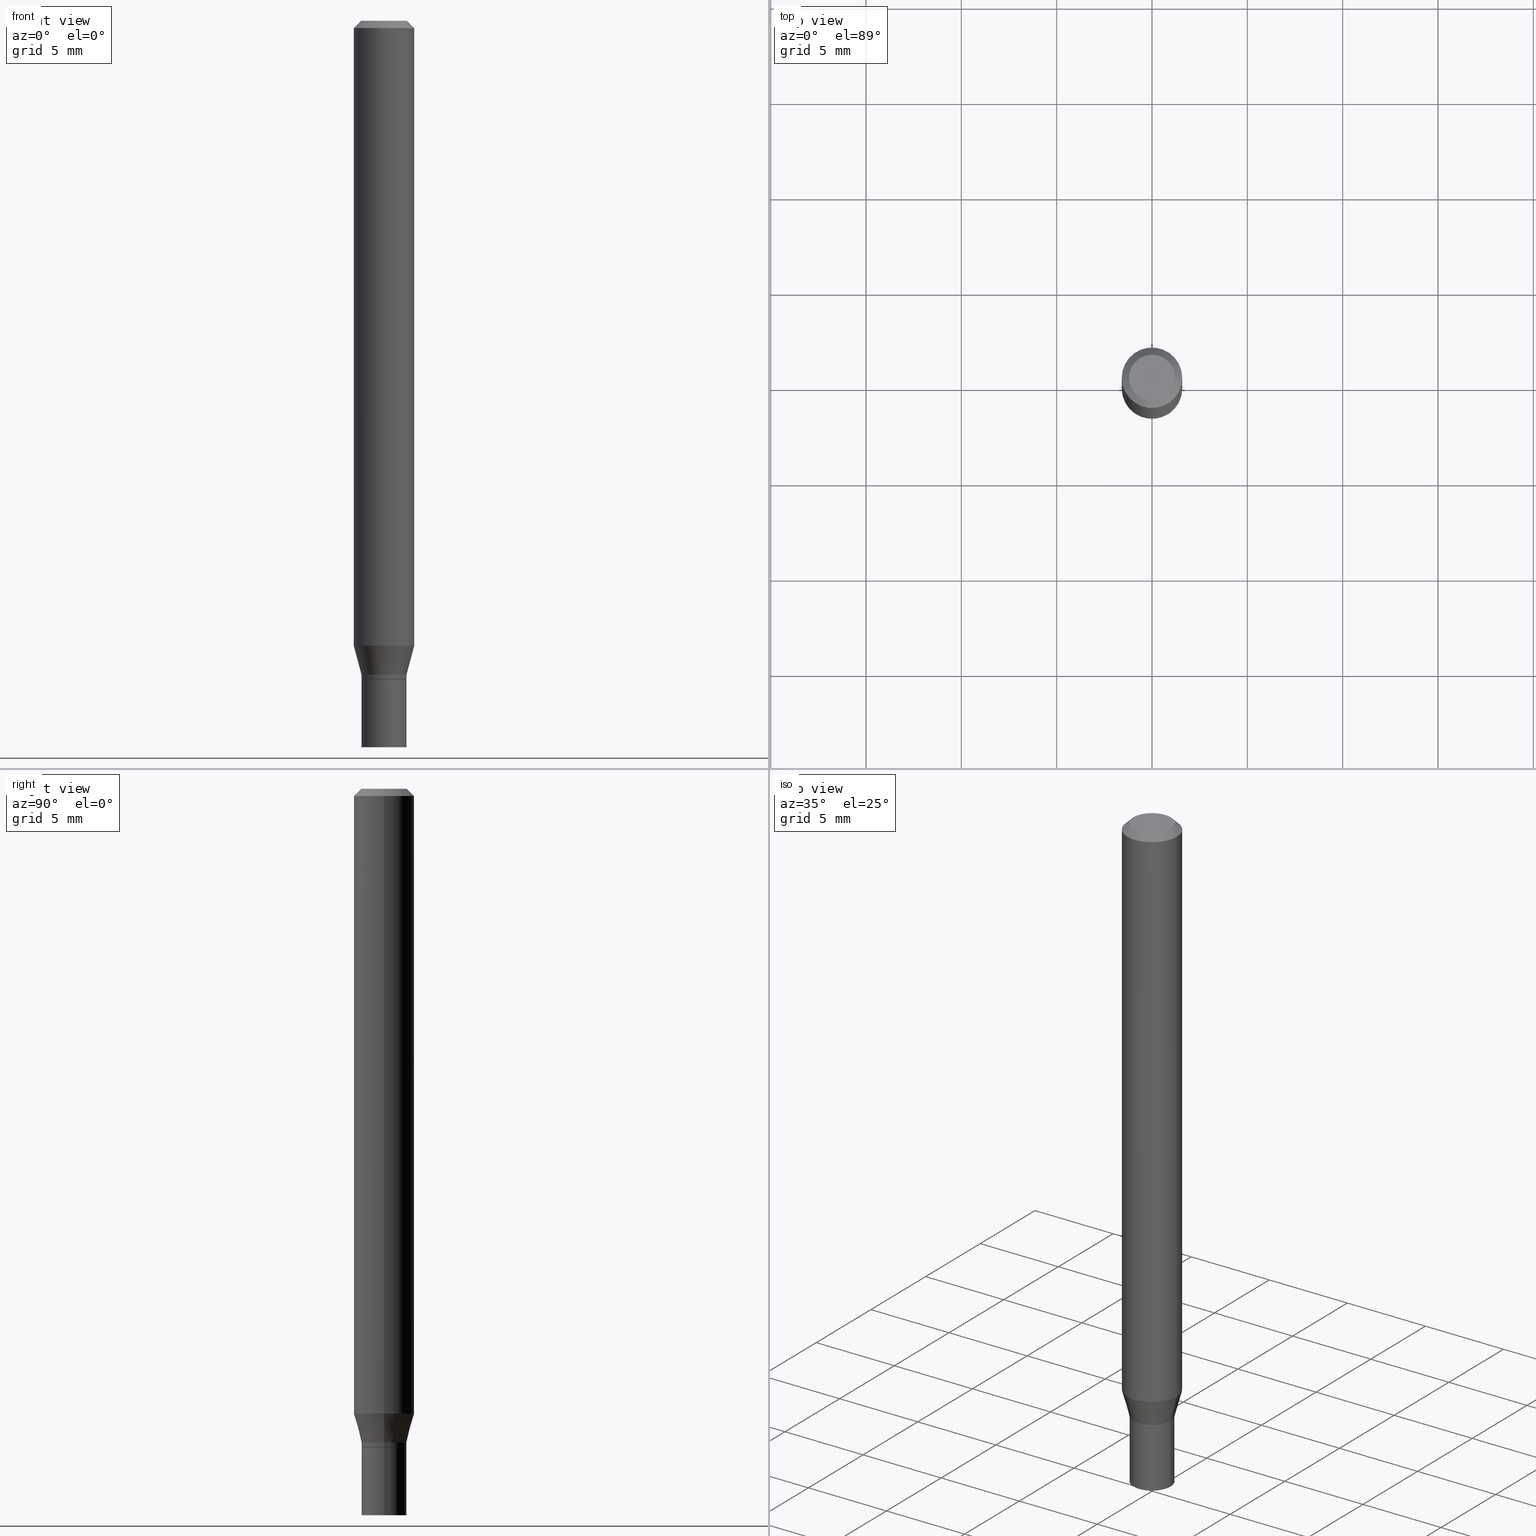
[diagram: canonical four-view strip — front | top / right | iso, engineering-drawing reading convention]
A machine part, canonical four-view strip (front | top / right | iso — engineering-drawing reading convention). The complete STEP part file that produces these views, byte-faithful:
ISO-10303-21;
HEADER;
FILE_DESCRIPTION (( 'STEP AP203' ),
    '1' );
FILE_NAME ('02429.STEP',
    '2024-03-18T20:33:06',
    ( '' ),
    ( '' ),
    'SwSTEP 2.0',
    'SolidWorks 2023',
    '' );
FILE_SCHEMA (( 'CONFIG_CONTROL_DESIGN' ));
ENDSEC;

DATA;
#1 = DIRECTION ( 'NONE',  ( -2.445468806185136597E-29, 3.491481338843145583E-15, 1.000000000000000000 ) ) ;
#2 = EDGE_CURVE ( 'NONE', #344, #132, #3, .T. ) ;
#3 = CIRCLE ( 'NONE', #209, 0.06250000000000000000 ) ;
#4 =( NAMED_UNIT ( * ) SI_UNIT ( $, .STERADIAN. ) SOLID_ANGLE_UNIT ( ) );
#5 = ORIENTED_EDGE ( 'NONE', *, *, #33, .T. ) ;
#6 = CARTESIAN_POINT ( 'NONE',  ( 3.155357067021810605E-29, -4.505013635434386600E-15, -1.290287187078897890 ) ) ;
#7 = EDGE_CURVE ( 'NONE', #360, #13, #111, .T. ) ;
#8 = CC_DESIGN_PERSON_AND_ORGANIZATION_ASSIGNMENT ( #342, #426, ( #355 ) ) ;
#9 = DIRECTION ( 'NONE',  ( 1.000000000000000000, -6.982962677686269866E-15, 0.000000000000000000 ) ) ;
#10 = ORIENTED_EDGE ( 'NONE', *, *, #177, .T. ) ;
#11 = ORIENTED_EDGE ( 'NONE', *, *, #7, .F. ) ;
#12 = VECTOR ( 'NONE', #181, 39.37007874015748143 ) ;
#13 = VERTEX_POINT ( 'NONE', #392 ) ;
#14 = APPLICATION_PROTOCOL_DEFINITION ( 'international standard', 'config_control_design', 1994, #255 ) ;
#15 = ORIENTED_EDGE ( 'NONE', *, *, #89, .T. ) ;
#16 = FACE_OUTER_BOUND ( 'NONE', #345, .T. ) ;
#17 = ADVANCED_FACE ( 'NONE', ( #68 ), #166, .F. ) ;
#18 = EDGE_LOOP ( 'NONE', ( #359, #88 ) ) ;
#19 = APPROVAL_PERSON_ORGANIZATION ( #99, #169, #224 ) ;
#20 = APPROVAL_STATUS ( 'not_yet_approved' ) ;
#21 = CARTESIAN_POINT ( 'NONE',  ( 3.668203209277704895E-29, -5.237222008264718177E-15, -1.500000000000000222 ) ) ;
#22 = AXIS2_PLACEMENT_3D ( 'NONE', #416, #191, #198 ) ;
#23 = ORGANIZATION ( 'UNSPECIFIED', 'UNSPECIFIED', '' ) ;
#24 = DIRECTION ( 'NONE',  ( -2.445468806185136597E-29, 3.491481338843145583E-15, 1.000000000000000000 ) ) ;
#25 = CYLINDRICAL_SURFACE ( 'NONE', #196, 0.04649999999999999967 ) ;
#26 = DIRECTION ( 'NONE',  ( -2.445468806185136597E-29, 3.491481338843145583E-15, 1.000000000000000000 ) ) ;
#27 = AXIS2_PLACEMENT_3D ( 'NONE', #339, #24, #297 ) ;
#28 = EDGE_LOOP ( 'NONE', ( #363, #382, #370, #236 ) ) ;
#29 = VECTOR ( 'NONE', #397, 39.37007874015748143 ) ;
#30 = CC_DESIGN_SECURITY_CLASSIFICATION ( #355, ( #55 ) ) ;
#31 = CALENDAR_DATE ( 2024, 18, 3 ) ;
#32 = CARTESIAN_POINT ( 'NONE',  ( 3.324614842008693822E-29, -4.746668880157257530E-15, -1.359500000000000375 ) ) ;
#33 = EDGE_CURVE ( 'NONE', #357, #77, #354, .T. ) ;
#34 = CARTESIAN_POINT ( 'NONE',  ( 0.04649999999999993722, -5.038207571950657304E-15, -1.350000000000000089 ) ) ;
#35 = EDGE_LOOP ( 'NONE', ( #249, #124, #327, #85 ) ) ;
#36 = LINE ( 'NONE', #143, #282 ) ;
#37 = CLOSED_SHELL ( 'NONE', ( #52, #305, #270, #65 ) ) ;
#38 = CC_DESIGN_APPROVAL ( #76, ( #149 ) ) ;
#39 = DIRECTION ( 'NONE',  ( 1.000000000000000000, -6.982962677686265922E-15, 4.876176775795935793E-29 ) ) ;
#40 = DIRECTION ( 'NONE',  ( -2.438088387897960049E-29, 3.491481338843145188E-15, 1.000000000000000000 ) ) ;
#41 = CC_DESIGN_DATE_AND_TIME_ASSIGNMENT ( #308, #235, ( #355 ) ) ;
#42 = VERTEX_POINT ( 'NONE', #34 ) ;
#43 = AXIS2_PLACEMENT_3D ( 'NONE', #299, #264, #272 ) ;
#44 = VECTOR ( 'NONE', #379, 39.37007874015748143 ) ;
#45 = CC_DESIGN_APPROVAL ( #169, ( #355 ) ) ;
#46 = PLANE ( 'NONE',  #269 ) ;
#47 = MECHANICAL_CONTEXT ( 'NONE', #255, 'mechanical' ) ;
#48 = ORIENTED_EDGE ( 'NONE', *, *, #218, .F. ) ;
#49 = EDGE_CURVE ( 'NONE', #323, #444, #238, .T. ) ;
#50 = PERSON_AND_ORGANIZATION ( #458, #23 ) ;
#51 = ORIENTED_EDGE ( 'NONE', *, *, #399, .F. ) ;
#52 = ADVANCED_FACE ( 'NONE', ( #343 ), #466, .T. ) ;
#53 = DIRECTION ( 'NONE',  ( -2.445468806185136597E-29, 3.491481338843145583E-15, 1.000000000000000000 ) ) ;
#54 = AXIS2_PLACEMENT_3D ( 'NONE', #419, #226, #131 ) ;
#55 = PRODUCT_DEFINITION_FORMATION_WITH_SPECIFIED_SOURCE ( 'ANY', '', #57, .NOT_KNOWN. ) ;
#56 = EDGE_CURVE ( 'NONE', #357, #42, #106, .T. ) ;
#57 = PRODUCT ( '02429', '02429', '', ( #47 ) ) ;
#58 = COORDINATED_UNIVERSAL_TIME_OFFSET ( 5, 0, .BEHIND. ) ;
#59 = DIRECTION ( 'NONE',  ( 1.000000000000000000, -6.982962677686266711E-15, 4.876176775795935793E-29 ) ) ;
#60 = CARTESIAN_POINT ( 'NONE',  ( 3.325837576411786624E-29, -4.748414620826679034E-15, -1.360000000000000320 ) ) ;
#61 = DATE_AND_TIME ( #72, #260 ) ;
#62 = CIRCLE ( 'NONE', #333, 0.04749999999999999362 ) ;
#63 = CARTESIAN_POINT ( 'NONE',  ( -0.04649999999999992334, -4.416266508028811833E-15, -1.359500000000000375 ) ) ;
#64 = CARTESIAN_POINT ( 'NONE',  ( -2.121106073929386760E-45, 3.028377322213383622E-31, 8.673617379884936499E-17 ) ) ;
#65 = ADVANCED_FACE ( 'NONE', ( #98 ), #222, .F. ) ;
#66 = DIRECTION ( 'NONE',  ( 1.000000000000000000, -6.982962677686266711E-15, 0.000000000000000000 ) ) ;
#67 = VECTOR ( 'NONE', #199, 39.37007874015748143 ) ;
#68 = FACE_OUTER_BOUND ( 'NONE', #176, .T. ) ;
#69 = CARTESIAN_POINT ( 'NONE',  ( 0.000000000000000000, 0.000000000000000000, 0.000000000000000000 ) ) ;
#70 = VECTOR ( 'NONE', #223, 39.37007874015748143 ) ;
#71 = CC_DESIGN_PERSON_AND_ORGANIZATION_ASSIGNMENT ( #266, #303, ( #55 ) ) ;
#72 = CALENDAR_DATE ( 2024, 18, 3 ) ;
#73 = CARTESIAN_POINT ( 'NONE',  ( 3.668203209277705088E-31, -5.237222008264718399E-17, -0.01499999999999999944 ) ) ;
#74 = DIRECTION ( 'NONE',  ( -2.445468806185136597E-29, 3.491481338843145583E-15, 1.000000000000000000 ) ) ;
#75 = ORIENTED_EDGE ( 'NONE', *, *, #204, .F. ) ;
#76 = APPROVAL ( #20, 'UNSPECIFIED' ) ;
#77 = VERTEX_POINT ( 'NONE', #63 ) ;
#78 = CONICAL_SURFACE ( 'NONE', #239, 0.04649999999999993722, 0.2617993877991500740 ) ;
#79 = FACE_OUTER_BOUND ( 'NONE', #80, .T. ) ;
#80 = EDGE_LOOP ( 'NONE', ( #118, #178, #306, #450 ) ) ;
#81 = MANIFOLD_SOLID_BREP ( 'Body-Move/Copy2[2]', #429 ) ;
#82 = DIRECTION ( 'NONE',  ( -2.445468806185136877E-29, 3.491481338843145188E-15, 1.000000000000000000 ) ) ;
#83 = DIRECTION ( 'NONE',  ( 1.000000000000000000, -6.982962677686266711E-15, 4.876176775795935232E-29 ) ) ;
#84 = ORIENTED_EDGE ( 'NONE', *, *, #220, .T. ) ;
#85 = ORIENTED_EDGE ( 'NONE', *, *, #107, .F. ) ;
#86 = EDGE_LOOP ( 'NONE', ( #75, #446, #311, #48 ) ) ;
#87 = ADVANCED_FACE ( 'NONE', ( #101 ), #376, .T. ) ;
#88 = ORIENTED_EDGE ( 'NONE', *, *, #142, .T. ) ;
#89 = EDGE_CURVE ( 'NONE', #145, #13, #108, .T. ) ;
#90 = CIRCLE ( 'NONE', #202, 0.04649999999999992334 ) ;
#91 = EDGE_LOOP ( 'NONE', ( #84, #212 ) ) ;
#92 = APPROVAL_DATE_TIME ( #405, #335 ) ;
#93 = ORIENTED_EDGE ( 'NONE', *, *, #234, .F. ) ;
#94 = ADVANCED_FACE ( 'NONE', ( #237 ), #373, .T. ) ;
#95 = AXIS2_PLACEMENT_3D ( 'NONE', #301, #421, #135 ) ;
#96 = CONICAL_SURFACE ( 'NONE', #216, 0.04649999999999993722, 0.2617993877991500740 ) ;
#97 = APPROVAL_ROLE ( '' ) ;
#98 = FACE_OUTER_BOUND ( 'NONE', #91, .T. ) ;
#99 = PERSON_AND_ORGANIZATION ( #458, #23 ) ;
#100 = DIRECTION ( 'NONE',  ( 1.000000000000000000, -6.982962677686269866E-15, 0.000000000000000000 ) ) ;
#101 = FACE_OUTER_BOUND ( 'NONE', #150, .T. ) ;
#102 = AXIS2_PLACEMENT_3D ( 'NONE', #425, #40, #348 ) ;
#103 = LOCAL_TIME ( 16, 33, 6.000000000000000000, #58 ) ;
#104 = CARTESIAN_POINT ( 'NONE',  ( -0.06250000000000000000, -1.834603717908454421E-15, -0.01499999999999999944 ) ) ;
#105 = DIRECTION ( 'NONE',  ( 1.000000000000000000, -6.982962677686266711E-15, 0.000000000000000000 ) ) ;
#106 = LINE ( 'NONE', #463, #268 ) ;
#107 = EDGE_CURVE ( 'NONE', #42, #145, #387, .T. ) ;
#108 = CIRCLE ( 'NONE', #22, 0.06250000000000000000 ) ;
#109 = CIRCLE ( 'NONE', #374, 0.04649999999999999967 ) ;
#110 = DIRECTION ( 'NONE',  ( 2.445468806185136597E-29, -3.491481338843145583E-15, -1.000000000000000000 ) ) ;
#111 = LINE ( 'NONE', #243, #253 ) ;
#112 = DIRECTION ( 'NONE',  ( -2.445468806185136597E-29, 3.491481338843145583E-15, 1.000000000000000000 ) ) ;
#113 = ADVANCED_FACE ( 'NONE', ( #271 ), #233, .T. ) ;
#114 = CARTESIAN_POINT ( 'NONE',  ( -0.04649999999999999967, -4.662415942417251725E-15, -1.360000000000000320 ) ) ;
#115 = CONICAL_SURFACE ( 'NONE', #27, 0.04599999999999999922, 0.7853981633974739252 ) ;
#116 = CC_DESIGN_APPROVAL ( #335, ( #55 ) ) ;
#117 = CARTESIAN_POINT ( 'NONE',  ( -0.04649999999999993722, -4.222010930447061653E-15, -1.350000000000000089 ) ) ;
#118 = ORIENTED_EDGE ( 'NONE', *, *, #142, .F. ) ;
#119 = ORIENTED_EDGE ( 'NONE', *, *, #128, .F. ) ;
#120 = ADVANCED_FACE ( 'NONE', ( #188 ), #115, .T. ) ;
#121 = ORIENTED_EDGE ( 'NONE', *, *, #234, .T. ) ;
#122 = ORIENTED_EDGE ( 'NONE', *, *, #313, .F. ) ;
#123 = LOCAL_TIME ( 16, 33, 6.000000000000000000, #415 ) ;
#124 = ORIENTED_EDGE ( 'NONE', *, *, #7, .T. ) ;
#125 = EDGE_LOOP ( 'NONE', ( #193, #288, #402, #151 ) ) ;
#126 = DATE_AND_TIME ( #157, #123 ) ;
#127 = DIRECTION ( 'NONE',  ( -2.445468806185136597E-29, 3.491481338843145583E-15, 1.000000000000000000 ) ) ;
#128 = EDGE_CURVE ( 'NONE', #360, #42, #413, .T. ) ;
#129 = DIRECTION ( 'NONE',  ( -2.445468806185136597E-29, 3.491481338843145583E-15, 1.000000000000000000 ) ) ;
#130 = CARTESIAN_POINT ( 'NONE',  ( 0.000000000000000000, 0.000000000000000000, 0.000000000000000000 ) ) ;
#131 = DIRECTION ( 'NONE',  ( 1.000000000000000000, -6.982962677686269866E-15, 0.000000000000000000 ) ) ;
#132 = VERTEX_POINT ( 'NONE', #104 ) ;
#133 = DIRECTION ( 'NONE',  ( 1.000000000000000000, -6.982962677686267499E-15, 4.876176775795936353E-29 ) ) ;
#134 =( GEOMETRIC_REPRESENTATION_CONTEXT ( 3 ) GLOBAL_UNCERTAINTY_ASSIGNED_CONTEXT ( ( #267 ) ) GLOBAL_UNIT_ASSIGNED_CONTEXT ( ( #275, #391, #4 ) ) REPRESENTATION_CONTEXT ( 'NONE', 'WORKASPACE' ) );
#135 = DIRECTION ( 'NONE',  ( 1.000000000000000000, -6.982962677686269866E-15, 0.000000000000000000 ) ) ;
#136 = CC_DESIGN_PERSON_AND_ORGANIZATION_ASSIGNMENT ( #219, #452, ( #57 ) ) ;
#137 = DIRECTION ( 'NONE',  ( -1.000000000000000000, 6.982962677686265922E-15, -4.876176775795935793E-29 ) ) ;
#138 = DIRECTION ( 'NONE',  ( -2.445468806185136877E-29, 3.491481338843145188E-15, 1.000000000000000000 ) ) ;
#139 = LENGTH_MEASURE_WITH_UNIT ( LENGTH_MEASURE( 0.02539999999999999897 ), #350 );
#140 = AXIS2_PLACEMENT_3D ( 'NONE', #407, #368, #365 ) ;
#141 = DIRECTION ( 'NONE',  ( 2.445468806185136597E-29, -3.491481338843145583E-15, -1.000000000000000000 ) ) ;
#142 = EDGE_CURVE ( 'NONE', #231, #330, #281, .T. ) ;
#143 = CARTESIAN_POINT ( 'NONE',  ( -0.06250000000000000000, 4.440892098500626162E-16, -3.074334431409316114E-30 ) ) ;
#144 = CARTESIAN_POINT ( 'NONE',  ( 0.06250000000000000000, -4.888073874380388472E-16, -0.01499999999999999944 ) ) ;
#145 = VERTEX_POINT ( 'NONE', #304 ) ;
#146 = VERTEX_POINT ( 'NONE', #114 ) ;
#147 = CIRCLE ( 'NONE', #195, 0.04599999999999999922 ) ;
#148 = AXIS2_PLACEMENT_3D ( 'NONE', #433, #110, #437 ) ;
#149 = PRODUCT_DEFINITION ( 'UNKNOWN', '', #55, #396 ) ;
#150 = EDGE_LOOP ( 'NONE', ( #15, #445, #250, #208 ) ) ;
#151 = ORIENTED_EDGE ( 'NONE', *, *, #177, .F. ) ;
#152 = CARTESIAN_POINT ( 'NONE',  ( 0.000000000000000000, 0.000000000000000000, 0.000000000000000000 ) ) ;
#153 = AXIS2_PLACEMENT_3D ( 'NONE', #162, #424, #380 ) ;
#154 = VECTOR ( 'NONE', #82, 39.37007874015748143 ) ;
#155 = CARTESIAN_POINT ( 'NONE',  ( 3.316907271900976096E-16, 0.04749999999999999362, -1.224772766956247324E-16 ) ) ;
#156 = DIRECTION ( 'NONE',  ( 1.000000000000000000, -6.982962677686269866E-15, 0.000000000000000000 ) ) ;
#157 = CALENDAR_DATE ( 2024, 18, 3 ) ;
#158 = EDGE_CURVE ( 'NONE', #406, #185, #147, .T. ) ;
#159 = DIRECTION ( 'NONE',  ( 0.2588190451025213501, 1.565188264969621968E-15, 0.9659258262890682012 ) ) ;
#160 = DIRECTION ( 'NONE',  ( -2.445468806185136877E-29, 3.491481338843145188E-15, 1.000000000000000000 ) ) ;
#161 = DIRECTION ( 'NONE',  ( 1.000000000000000000, -6.982962677686271444E-15, 0.000000000000000000 ) ) ;
#162 = CARTESIAN_POINT ( 'NONE',  ( 3.668203209277704895E-29, -5.237222008264718177E-15, -1.500000000000000222 ) ) ;
#163 = AXIS2_PLACEMENT_3D ( 'NONE', #173, #141, #279 ) ;
#164 = DIRECTION ( 'NONE',  ( 2.438088387897960049E-29, -3.491481338843145188E-15, -1.000000000000000000 ) ) ;
#165 = PERSON_AND_ORGANIZATION_ROLE ( 'creator' ) ;
#166 = PLANE ( 'NONE',  #102 ) ;
#167 = CARTESIAN_POINT ( 'NONE',  ( -0.04599999999999999922, -4.418915735202923035E-15, -1.360000000000000320 ) ) ;
#168 = DIRECTION ( 'NONE',  ( -2.438088387897960049E-29, 3.491481338843145188E-15, 1.000000000000000000 ) ) ;
#169 = APPROVAL ( #420, 'UNSPECIFIED' ) ;
#170 = AXIS2_PLACEMENT_3D ( 'NONE', #312, #247, #105 ) ;
#171 = ORIENTED_EDGE ( 'NONE', *, *, #49, .F. ) ;
#172 = EDGE_CURVE ( 'NONE', #406, #357, #276, .T. ) ;
#173 = CARTESIAN_POINT ( 'NONE',  ( 3.668203209277705088E-31, -5.237222008264718399E-17, -0.01499999999999999944 ) ) ;
#174 = CARTESIAN_POINT ( 'NONE',  ( -0.04599999999999999922, -4.421564962377032658E-15, -1.360000000000000320 ) ) ;
#175 = DIRECTION ( 'NONE',  ( -2.445468806185136597E-29, 3.491481338843145583E-15, 1.000000000000000000 ) ) ;
#176 = EDGE_LOOP ( 'NONE', ( #284, #205 ) ) ;
#177 = EDGE_CURVE ( 'NONE', #444, #325, #436, .T. ) ;
#178 = ORIENTED_EDGE ( 'NONE', *, *, #289, .T. ) ;
#179 = ORIENTED_EDGE ( 'NONE', *, *, #56, .T. ) ;
#180 = AXIS2_PLACEMENT_3D ( 'NONE', #248, #127, #156 ) ;
#181 = DIRECTION ( 'NONE',  ( -2.445468806185136877E-29, 3.491481338843145188E-15, 1.000000000000000000 ) ) ;
#182 = ORIENTED_EDGE ( 'NONE', *, *, #313, .T. ) ;
#183 = EDGE_LOOP ( 'NONE', ( #443, #171 ) ) ;
#184 = CC_DESIGN_PERSON_AND_ORGANIZATION_ASSIGNMENT ( #369, #257, ( #149 ) ) ;
#185 = VERTEX_POINT ( 'NONE', #167 ) ;
#186 = DIRECTION ( 'NONE',  ( 1.000000000000000000, -6.982962677686266711E-15, 4.876176775795935232E-29 ) ) ;
#187 = DIRECTION ( 'NONE',  ( -2.445468806185136597E-29, 3.491481338843145583E-15, 1.000000000000000000 ) ) ;
#188 = FACE_OUTER_BOUND ( 'NONE', #439, .T. ) ;
#189 = CONICAL_SURFACE ( 'NONE', #148, 0.06250000000000000000, 0.7853981633974456145 ) ;
#190 = APPROVAL_DATE_TIME ( #61, #169 ) ;
#191 = DIRECTION ( 'NONE',  ( -2.445468806185136597E-29, 3.491481338843145583E-15, 1.000000000000000000 ) ) ;
#192 = DIRECTION ( 'NONE',  ( 1.000000000000000000, -6.982962677686260400E-15, 0.000000000000000000 ) ) ;
#193 = ORIENTED_EDGE ( 'NONE', *, *, #411, .T. ) ;
#194 = COORDINATED_UNIVERSAL_TIME_OFFSET ( 5, 0, .BEHIND. ) ;
#195 = AXIS2_PLACEMENT_3D ( 'NONE', #352, #358, #244 ) ;
#196 = AXIS2_PLACEMENT_3D ( 'NONE', #130, #265, #133 ) ;
#197 = DIRECTION ( 'NONE',  ( -2.445468806185136597E-29, 3.491481338843145583E-15, 1.000000000000000000 ) ) ;
#198 = DIRECTION ( 'NONE',  ( 1.000000000000000000, -6.982962677686262766E-15, 0.000000000000000000 ) ) ;
#199 = DIRECTION ( 'NONE',  ( -0.7071067811865656694, 7.493145998870420424E-15, 0.7071067811865294761 ) ) ;
#200 = EDGE_CURVE ( 'NONE', #146, #325, #404, .T. ) ;
#201 = CARTESIAN_POINT ( 'NONE',  ( 0.000000000000000000, 0.000000000000000000, 0.000000000000000000 ) ) ;
#202 = AXIS2_PLACEMENT_3D ( 'NONE', #300, #341, #161 ) ;
#203 = CARTESIAN_POINT ( 'NONE',  ( 3.576687321579069994E-29, -5.368277968210015545E-15, -1.500000000000000222 ) ) ;
#204 = EDGE_CURVE ( 'NONE', #13, #132, #36, .T. ) ;
#205 = ORIENTED_EDGE ( 'NONE', *, *, #465, .F. ) ;
#206 = EDGE_CURVE ( 'NONE', #185, #77, #432, .T. ) ;
#207 = EDGE_CURVE ( 'NONE', #13, #145, #322, .T. ) ;
#208 = ORIENTED_EDGE ( 'NONE', *, *, #273, .F. ) ;
#209 = AXIS2_PLACEMENT_3D ( 'NONE', #73, #197, #66 ) ;
#210 = VECTOR ( 'NONE', #261, 39.37007874015748854 ) ;
#211 = FACE_OUTER_BOUND ( 'NONE', #35, .T. ) ;
#212 = ORIENTED_EDGE ( 'NONE', *, *, #200, .T. ) ;
#213 = DIRECTION ( 'NONE',  ( 1.000000000000000000, -6.982962677686260400E-15, 0.000000000000000000 ) ) ;
#214 = DATE_AND_TIME ( #409, #290 ) ;
#215 = AXIS2_PLACEMENT_3D ( 'NONE', #294, #456, #263 ) ;
#216 = AXIS2_PLACEMENT_3D ( 'NONE', #395, #175, #9 ) ;
#217 = CARTESIAN_POINT ( 'NONE',  ( 3.325837576411786624E-29, -4.748414620826679034E-15, -1.360000000000000320 ) ) ;
#218 = EDGE_CURVE ( 'NONE', #132, #344, #274, .T. ) ;
#219 = PERSON_AND_ORGANIZATION ( #458, #23 ) ;
#220 = EDGE_CURVE ( 'NONE', #325, #146, #109, .T. ) ;
#221 = CARTESIAN_POINT ( 'NONE',  ( -0.06250000000000000000, 3.840629472727444916E-16, -0.01499999999999999944 ) ) ;
#222 = PLANE ( 'NONE',  #293 ) ;
#223 = DIRECTION ( 'NONE',  ( -2.445468806185136877E-29, 3.491481338843145188E-15, 1.000000000000000000 ) ) ;
#224 = APPROVAL_ROLE ( '' ) ;
#225 = CARTESIAN_POINT ( 'NONE',  ( 0.06250000000000000000, -4.364351673553916694E-16, 3.047610484872459871E-30 ) ) ;
#226 = DIRECTION ( 'NONE',  ( -2.445468806185136597E-29, 3.491481338843145583E-15, 1.000000000000000000 ) ) ;
#227 = DIRECTION ( 'NONE',  ( -2.445468806185136597E-29, 3.491481338843145583E-15, 1.000000000000000000 ) ) ;
#228 = CONICAL_SURFACE ( 'NONE', #163, 0.06250000000000000000, 0.7853981633974456145 ) ;
#229 = PRODUCT_RELATED_PRODUCT_CATEGORY ( 'detail', '', ( #57 ) ) ;
#230 = SHAPE_DEFINITION_REPRESENTATION ( #336, #385 ) ;
#231 = VERTEX_POINT ( 'NONE', #417 ) ;
#232 = LINE ( 'NONE', #225, #44 ) ;
#233 = CYLINDRICAL_SURFACE ( 'NONE', #215, 0.06250000000000000000 ) ;
#234 = EDGE_CURVE ( 'NONE', #77, #357, #90, .T. ) ;
#235 = DATE_TIME_ROLE ( 'classification_date' ) ;
#236 = ORIENTED_EDGE ( 'NONE', *, *, #172, .F. ) ;
#237 = FACE_OUTER_BOUND ( 'NONE', #28, .T. ) ;
#238 = CIRCLE ( 'NONE', #153, 0.04649999999999999967 ) ;
#239 = AXIS2_PLACEMENT_3D ( 'NONE', #252, #403, #367 ) ;
#240 = LOCAL_TIME ( 16, 33, 6.000000000000000000, #390 ) ;
#241 = DIRECTION ( 'NONE',  ( 1.000000000000000000, -6.982962677686271444E-15, 0.000000000000000000 ) ) ;
#242 = CARTESIAN_POINT ( 'NONE',  ( -0.04649999999999999967, -4.662415942417251725E-15, -1.500000000000000222 ) ) ;
#243 = CARTESIAN_POINT ( 'NONE',  ( -0.04649999999999993722, -4.383097435309800899E-15, -1.350000000000000089 ) ) ;
#244 = DIRECTION ( 'NONE',  ( 1.000000000000000000, -6.982962677686269866E-15, 0.000000000000000000 ) ) ;
#245 = CARTESIAN_POINT ( 'NONE',  ( -0.04749999999999999362, 3.578768372314211985E-16, 8.673617379884694910E-17 ) ) ;
#246 = ORIENTED_EDGE ( 'NONE', *, *, #107, .T. ) ;
#247 = DIRECTION ( 'NONE',  ( -2.445468806185136597E-29, 3.491481338843145583E-15, 1.000000000000000000 ) ) ;
#248 = CARTESIAN_POINT ( 'NONE',  ( 3.301382888349935078E-29, -4.713499807438246596E-15, -1.350000000000000089 ) ) ;
#249 = ORIENTED_EDGE ( 'NONE', *, *, #362, .T. ) ;
#250 = ORIENTED_EDGE ( 'NONE', *, *, #2, .F. ) ;
#251 = DIRECTION ( 'NONE',  ( 0.7071067811865454633, -7.319954787623246579E-15, -0.7071067811865493491 ) ) ;
#252 = CARTESIAN_POINT ( 'NONE',  ( 3.301382888349935078E-29, -4.713499807438246596E-15, -1.350000000000000089 ) ) ;
#253 = VECTOR ( 'NONE', #386, 39.37007874015747433 ) ;
#254 = EDGE_CURVE ( 'NONE', #323, #146, #461, .T. ) ;
#255 = APPLICATION_CONTEXT ( 'configuration controlled 3d designs of mechanical parts and assemblies' ) ;
#256 = DIRECTION ( 'NONE',  ( 2.438088387897960049E-29, -3.491481338843145188E-15, -1.000000000000000000 ) ) ;
#257 = PERSON_AND_ORGANIZATION_ROLE ( 'creator' ) ;
#258 = CYLINDRICAL_SURFACE ( 'NONE', #295, 0.04649999999999993722 ) ;
#259 = CIRCLE ( 'NONE', #180, 0.04649999999999993722 ) ;
#260 = LOCAL_TIME ( 16, 33, 6.000000000000000000, #194 ) ;
#261 = DIRECTION ( 'NONE',  ( -0.7071067811865454633, 2.468850131082235761E-15, -0.7071067811865493491 ) ) ;
#262 = APPLICATION_PROTOCOL_DEFINITION ( 'international standard', 'config_control_design', 1994, #438 ) ;
#263 = DIRECTION ( 'NONE',  ( 1.000000000000000000, -6.982962677686266711E-15, 4.876176775795935793E-29 ) ) ;
#264 = DIRECTION ( 'NONE',  ( -2.445468806185136597E-29, 3.491481338843145583E-15, 1.000000000000000000 ) ) ;
#265 = DIRECTION ( 'NONE',  ( -2.445468806185136597E-29, 3.491481338843145583E-15, 1.000000000000000000 ) ) ;
#266 = PERSON_AND_ORGANIZATION ( #458, #23 ) ;
#267 = UNCERTAINTY_MEASURE_WITH_UNIT (LENGTH_MEASURE( 1.000000000000000082E-05 ), #275, 'distance_accuracy_value', 'NONE');
#268 = VECTOR ( 'NONE', #160, 39.37007874015748143 ) ;
#269 = AXIS2_PLACEMENT_3D ( 'NONE', #203, #168, #39 ) ;
#270 = ADVANCED_FACE ( 'NONE', ( #378 ), #25, .T. ) ;
#271 = FACE_OUTER_BOUND ( 'NONE', #86, .T. ) ;
#272 = DIRECTION ( 'NONE',  ( 1.000000000000000000, -6.982962677686267499E-15, 4.876176775795936353E-29 ) ) ;
#273 = EDGE_CURVE ( 'NONE', #145, #344, #232, .T. ) ;
#274 = CIRCLE ( 'NONE', #170, 0.06250000000000000000 ) ;
#275 =( CONVERSION_BASED_UNIT ( 'INCH', #139 ) LENGTH_UNIT ( ) NAMED_UNIT ( #314 ) );
#276 = LINE ( 'NONE', #315, #29 ) ;
#277 = CYLINDRICAL_SURFACE ( 'NONE', #455, 0.04649999999999993722 ) ;
#278 = ORIENTED_EDGE ( 'NONE', *, *, #200, .F. ) ;
#279 = DIRECTION ( 'NONE',  ( -1.000000000000000000, 6.982962677686266711E-15, 0.000000000000000000 ) ) ;
#280 = ORIENTED_EDGE ( 'NONE', *, *, #172, .T. ) ;
#281 = CIRCLE ( 'NONE', #346, 0.04749999999999999362 ) ;
#282 = VECTOR ( 'NONE', #138, 39.37007874015748143 ) ;
#283 = ORIENTED_EDGE ( 'NONE', *, *, #465, .T. ) ;
#284 = ORIENTED_EDGE ( 'NONE', *, *, #158, .F. ) ;
#285 = ORIENTED_EDGE ( 'NONE', *, *, #207, .F. ) ;
#286 = APPROVAL_DATE_TIME ( #126, #76 ) ;
#287 = ORIENTED_EDGE ( 'NONE', *, *, #289, .F. ) ;
#288 = ORIENTED_EDGE ( 'NONE', *, *, #254, .T. ) ;
#289 = EDGE_CURVE ( 'NONE', #231, #344, #298, .T. ) ;
#290 = LOCAL_TIME ( 16, 33, 6.000000000000000000, #329 ) ;
#291 = ADVANCED_FACE ( 'NONE', ( #364 ), #277, .T. ) ;
#292 = DIRECTION ( 'NONE',  ( 1.000000000000000000, -6.982962677686267499E-15, 4.884662768193073002E-29 ) ) ;
#293 = AXIS2_PLACEMENT_3D ( 'NONE', #459, #164, #137 ) ;
#294 = CARTESIAN_POINT ( 'NONE',  ( 0.000000000000000000, 0.000000000000000000, 0.000000000000000000 ) ) ;
#295 = AXIS2_PLACEMENT_3D ( 'NONE', #152, #53, #186 ) ;
#296 = CARTESIAN_POINT ( 'NONE',  ( -0.04649999999999999967, 3.304023721284465841E-16, -2.287304816968531530E-30 ) ) ;
#297 = DIRECTION ( 'NONE',  ( 1.000000000000000000, -6.982962677686269866E-15, 0.000000000000000000 ) ) ;
#298 = LINE ( 'NONE', #457, #347 ) ;
#299 = CARTESIAN_POINT ( 'NONE',  ( 0.000000000000000000, 0.000000000000000000, 0.000000000000000000 ) ) ;
#300 = CARTESIAN_POINT ( 'NONE',  ( 3.324614842008693822E-29, -4.746668880157257530E-15, -1.359500000000000375 ) ) ;
#301 = CARTESIAN_POINT ( 'NONE',  ( 3.325837576411786624E-29, -4.748414620826679034E-15, -1.360000000000000320 ) ) ;
#302 = APPROVAL_PERSON_ORGANIZATION ( #453, #335, #375 ) ;
#303 = PERSON_AND_ORGANIZATION_ROLE ( 'design_supplier' ) ;
#304 = CARTESIAN_POINT ( 'NONE',  ( 0.06250000000000000000, -4.941448802789779058E-15, -1.290287187078897890 ) ) ;
#305 = ADVANCED_FACE ( 'NONE', ( #353 ), #46, .F. ) ;
#306 = ORIENTED_EDGE ( 'NONE', *, *, #2, .T. ) ;
#307 = CARTESIAN_POINT ( 'NONE',  ( 0.04649999999999999967, -3.247077645124114474E-16, 2.267422200745110326E-30 ) ) ;
#308 = DATE_AND_TIME ( #31, #240 ) ;
#309 = APPROVAL_PERSON_ORGANIZATION ( #50, #76, #97 ) ;
#310 = LINE ( 'NONE', #317, #12 ) ;
#311 = ORIENTED_EDGE ( 'NONE', *, *, #273, .T. ) ;
#312 = CARTESIAN_POINT ( 'NONE',  ( 3.668203209277705088E-31, -5.237222008264718399E-17, -0.01499999999999999944 ) ) ;
#313 = EDGE_CURVE ( 'NONE', #77, #360, #310, .T. ) ;
#314 = DIMENSIONAL_EXPONENTS ( 1.000000000000000000, 0.000000000000000000, 0.000000000000000000, 0.000000000000000000, 0.000000000000000000, 0.000000000000000000, 0.000000000000000000 ) ;
#315 = CARTESIAN_POINT ( 'NONE',  ( 0.04599999999999999922, -5.069630904000247523E-15, -1.360000000000000320 ) ) ;
#316 = ADVANCED_FACE ( 'NONE', ( #324 ), #228, .T. ) ;
#317 = CARTESIAN_POINT ( 'NONE',  ( -0.04649999999999993722, 3.304023721284461403E-16, -2.287304816968528027E-30 ) ) ;
#318 = ORIENTED_EDGE ( 'NONE', *, *, #56, .F. ) ;
#319 = ADVANCED_FACE ( 'NONE', ( #79 ), #189, .T. ) ;
#320 = ORIENTED_EDGE ( 'NONE', *, *, #254, .F. ) ;
#321 = CIRCLE ( 'NONE', #381, 0.04649999999999999967 ) ;
#322 = CIRCLE ( 'NONE', #422, 0.06250000000000000000 ) ;
#323 = VERTEX_POINT ( 'NONE', #242 ) ;
#324 = FACE_OUTER_BOUND ( 'NONE', #431, .T. ) ;
#325 = VERTEX_POINT ( 'NONE', #356 ) ;
#326 = CC_DESIGN_PERSON_AND_ORGANIZATION_ASSIGNMENT ( #418, #165, ( #55 ) ) ;
#327 = ORIENTED_EDGE ( 'NONE', *, *, #89, .F. ) ;
#328 = CARTESIAN_POINT ( 'NONE',  ( 0.04599999999999999922, -5.069630904000247523E-15, -1.360000000000000320 ) ) ;
#329 = COORDINATED_UNIVERSAL_TIME_OFFSET ( 5, 0, .BEHIND. ) ;
#330 = VERTEX_POINT ( 'NONE', #245 ) ;
#331 = FACE_OUTER_BOUND ( 'NONE', #18, .T. ) ;
#332 = VECTOR ( 'NONE', #159, 39.37007874015747433 ) ;
#333 = AXIS2_PLACEMENT_3D ( 'NONE', #414, #187, #292 ) ;
#334 = ADVANCED_FACE ( 'NONE', ( #441 ), #96, .T. ) ;
#335 = APPROVAL ( #372, 'UNSPECIFIED' ) ;
#336 = PRODUCT_DEFINITION_SHAPE ( 'NONE', 'NONE',  #149 ) ;
#337 = PLANE ( 'NONE',  #389 ) ;
#338 = CALENDAR_DATE ( 2024, 18, 3 ) ;
#339 = CARTESIAN_POINT ( 'NONE',  ( 3.325837576411786624E-29, -4.748414620826679034E-15, -1.360000000000000320 ) ) ;
#340 = AXIS2_PLACEMENT_3D ( 'NONE', #217, #454, #100 ) ;
#341 = DIRECTION ( 'NONE',  ( -2.445468806185136597E-29, 3.491481338843145583E-15, 1.000000000000000000 ) ) ;
#342 = PERSON_AND_ORGANIZATION ( #458, #23 ) ;
#343 = FACE_OUTER_BOUND ( 'NONE', #125, .T. ) ;
#344 = VERTEX_POINT ( 'NONE', #144 ) ;
#345 = EDGE_LOOP ( 'NONE', ( #122, #121, #179, #119 ) ) ;
#346 = AXIS2_PLACEMENT_3D ( 'NONE', #64, #26, #384 ) ;
#347 = VECTOR ( 'NONE', #251, 39.37007874015748854 ) ;
#348 = DIRECTION ( 'NONE',  ( 1.000000000000000000, -6.982962677686265922E-15, 4.876176775795935793E-29 ) ) ;
#349 = CARTESIAN_POINT ( 'NONE',  ( 0.04649999999999993722, -5.038207571950657304E-15, -1.350000000000000089 ) ) ;
#350 =( LENGTH_UNIT ( ) NAMED_UNIT ( * ) SI_UNIT ( $, .METRE. ) );
#351 = ORIENTED_EDGE ( 'NONE', *, *, #362, .F. ) ;
#352 = CARTESIAN_POINT ( 'NONE',  ( 3.325837576411786624E-29, -4.748414620826679034E-15, -1.360000000000000320 ) ) ;
#353 = FACE_OUTER_BOUND ( 'NONE', #183, .T. ) ;
#354 = CIRCLE ( 'NONE', #388, 0.04649999999999992334 ) ;
#355 = SECURITY_CLASSIFICATION ( '', '', #464 ) ;
#356 = CARTESIAN_POINT ( 'NONE',  ( 0.04649999999999999967, -5.073122385339090530E-15, -1.360000000000000320 ) ) ;
#357 = VERTEX_POINT ( 'NONE', #398 ) ;
#358 = DIRECTION ( 'NONE',  ( -2.445468806185136597E-29, 3.491481338843145583E-15, 1.000000000000000000 ) ) ;
#359 = ORIENTED_EDGE ( 'NONE', *, *, #399, .T. ) ;
#360 = VERTEX_POINT ( 'NONE', #117 ) ;
#361 = EDGE_LOOP ( 'NONE', ( #320, #410, #10, #278 ) ) ;
#362 = EDGE_CURVE ( 'NONE', #42, #360, #259, .T. ) ;
#363 = ORIENTED_EDGE ( 'NONE', *, *, #158, .T. ) ;
#364 = FACE_OUTER_BOUND ( 'NONE', #448, .T. ) ;
#365 = DIRECTION ( 'NONE',  ( 1.000000000000000000, 0.000000000000000000, 0.000000000000000000 ) ) ;
#366 = CIRCLE ( 'NONE', #340, 0.04599999999999999922 ) ;
#367 = DIRECTION ( 'NONE',  ( 1.000000000000000000, -6.982962677686269866E-15, 0.000000000000000000 ) ) ;
#368 = DIRECTION ( 'NONE',  ( 0.000000000000000000, 0.000000000000000000, 1.000000000000000000 ) ) ;
#369 = PERSON_AND_ORGANIZATION ( #458, #23 ) ;
#370 = ORIENTED_EDGE ( 'NONE', *, *, #33, .F. ) ;
#371 = EDGE_CURVE ( 'NONE', #330, #132, #451, .T. ) ;
#372 = APPROVAL_STATUS ( 'not_yet_approved' ) ;
#373 = CONICAL_SURFACE ( 'NONE', #95, 0.04599999999999999922, 0.7853981633974739252 ) ;
#374 = AXIS2_PLACEMENT_3D ( 'NONE', #60, #227, #192 ) ;
#375 = APPROVAL_ROLE ( '' ) ;
#376 = CYLINDRICAL_SURFACE ( 'NONE', #462, 0.06250000000000000000 ) ;
#377 = CC_DESIGN_DATE_AND_TIME_ASSIGNMENT ( #214, #447, ( #149 ) ) ;
#378 = FACE_OUTER_BOUND ( 'NONE', #361, .T. ) ;
#379 = DIRECTION ( 'NONE',  ( -2.445468806185136877E-29, 3.491481338843145188E-15, 1.000000000000000000 ) ) ;
#380 = DIRECTION ( 'NONE',  ( 1.000000000000000000, -6.982962677686260400E-15, 0.000000000000000000 ) ) ;
#381 = AXIS2_PLACEMENT_3D ( 'NONE', #21, #449, #213 ) ;
#382 = ORIENTED_EDGE ( 'NONE', *, *, #206, .T. ) ;
#383 = MANIFOLD_SOLID_BREP ( 'Body-Move/Copy2[1]', #37 ) ;
#384 = DIRECTION ( 'NONE',  ( 1.000000000000000000, -6.982962677686267499E-15, 4.884662768193073002E-29 ) ) ;
#385 = ADVANCED_BREP_SHAPE_REPRESENTATION ( '02429', ( #383, #81, #140 ), #134 ) ;
#386 = DIRECTION ( 'NONE',  ( -0.2588190451025213501, 5.211531920934551042E-15, 0.9659258262890682012 ) ) ;
#387 = LINE ( 'NONE', #349, #332 ) ;
#388 = AXIS2_PLACEMENT_3D ( 'NONE', #32, #1, #241 ) ;
#389 = AXIS2_PLACEMENT_3D ( 'NONE', #155, #256, #412 ) ;
#390 = COORDINATED_UNIVERSAL_TIME_OFFSET ( 5, 0, .BEHIND. ) ;
#391 =( NAMED_UNIT ( * ) PLANE_ANGLE_UNIT ( ) SI_UNIT ( $, .RADIAN. ) );
#392 = CARTESIAN_POINT ( 'NONE',  ( -0.06250000000000000000, -4.060924425584323984E-15, -1.290287187078897890 ) ) ;
#393 = DIRECTION ( 'NONE',  ( 1.000000000000000000, -6.982962677686260400E-15, 0.000000000000000000 ) ) ;
#394 = AXIS2_PLACEMENT_3D ( 'NONE', #428, #112, #393 ) ;
#395 = CARTESIAN_POINT ( 'NONE',  ( 3.301382888349935078E-29, -4.713499807438246596E-15, -1.350000000000000089 ) ) ;
#396 = DESIGN_CONTEXT ( 'detailed design', #438, 'design' ) ;
#397 = DIRECTION ( 'NONE',  ( 0.7071067811865656694, -2.468850131082446387E-15, 0.7071067811865294761 ) ) ;
#398 = CARTESIAN_POINT ( 'NONE',  ( 0.04649999999999992334, -5.071376644669669027E-15, -1.359500000000000375 ) ) ;
#399 = EDGE_CURVE ( 'NONE', #330, #231, #62, .T. ) ;
#400 = EDGE_LOOP ( 'NONE', ( #11, #427, #246, #285 ) ) ;
#401 = ORIENTED_EDGE ( 'NONE', *, *, #371, .T. ) ;
#402 = ORIENTED_EDGE ( 'NONE', *, *, #220, .F. ) ;
#403 = DIRECTION ( 'NONE',  ( -2.445468806185136597E-29, 3.491481338843145583E-15, 1.000000000000000000 ) ) ;
#404 = CIRCLE ( 'NONE', #394, 0.04649999999999999967 ) ;
#405 = DATE_AND_TIME ( #338, #103 ) ;
#406 = VERTEX_POINT ( 'NONE', #328 ) ;
#407 = CARTESIAN_POINT ( 'NONE',  ( 0.000000000000000000, 0.000000000000000000, 0.000000000000000000 ) ) ;
#408 = CARTESIAN_POINT ( 'NONE',  ( 0.04649999999999999967, -5.561929772777129673E-15, -1.500000000000000222 ) ) ;
#409 = CALENDAR_DATE ( 2024, 18, 3 ) ;
#410 = ORIENTED_EDGE ( 'NONE', *, *, #49, .T. ) ;
#411 = EDGE_CURVE ( 'NONE', #444, #323, #321, .T. ) ;
#412 = DIRECTION ( 'NONE',  ( -1.000000000000000000, 6.982962677686265922E-15, -4.876176775795935793E-29 ) ) ;
#413 = CIRCLE ( 'NONE', #54, 0.04649999999999993722 ) ;
#414 = CARTESIAN_POINT ( 'NONE',  ( -2.121106073929386760E-45, 3.028377322213383622E-31, 8.673617379884936499E-17 ) ) ;
#415 = COORDINATED_UNIVERSAL_TIME_OFFSET ( 5, 0, .BEHIND. ) ;
#416 = CARTESIAN_POINT ( 'NONE',  ( 3.155357067021810605E-29, -4.505013635434386600E-15, -1.290287187078897890 ) ) ;
#417 = CARTESIAN_POINT ( 'NONE',  ( 0.04749999999999999362, -4.035134999187577144E-16, 8.673617379885194112E-17 ) ) ;
#418 = PERSON_AND_ORGANIZATION ( #458, #23 ) ;
#419 = CARTESIAN_POINT ( 'NONE',  ( 3.301382888349935078E-29, -4.713499807438246596E-15, -1.350000000000000089 ) ) ;
#420 = APPROVAL_STATUS ( 'not_yet_approved' ) ;
#421 = DIRECTION ( 'NONE',  ( -2.445468806185136597E-29, 3.491481338843145583E-15, 1.000000000000000000 ) ) ;
#422 = AXIS2_PLACEMENT_3D ( 'NONE', #6, #74, #440 ) ;
#423 = ADVANCED_FACE ( 'NONE', ( #211 ), #78, .T. ) ;
#424 = DIRECTION ( 'NONE',  ( -2.445468806185136597E-29, 3.491481338843145583E-15, 1.000000000000000000 ) ) ;
#425 = CARTESIAN_POINT ( 'NONE',  ( 3.325837576411786624E-29, -4.748414620826679034E-15, -1.360000000000000320 ) ) ;
#426 = PERSON_AND_ORGANIZATION_ROLE ( 'classification_officer' ) ;
#427 = ORIENTED_EDGE ( 'NONE', *, *, #128, .T. ) ;
#428 = CARTESIAN_POINT ( 'NONE',  ( 3.325837576411786624E-29, -4.748414620826679034E-15, -1.360000000000000320 ) ) ;
#429 = CLOSED_SHELL ( 'NONE', ( #291, #94, #319, #87, #423, #334, #113, #316, #442, #17, #120, #434 ) ) ;
#430 = DIRECTION ( 'NONE',  ( -2.445468806185136597E-29, 3.491481338843145583E-15, 1.000000000000000000 ) ) ;
#431 = EDGE_LOOP ( 'NONE', ( #287, #51, #401, #460 ) ) ;
#432 = LINE ( 'NONE', #174, #67 ) ;
#433 = CARTESIAN_POINT ( 'NONE',  ( 3.668203209277705088E-31, -5.237222008264718399E-17, -0.01499999999999999944 ) ) ;
#434 = ADVANCED_FACE ( 'NONE', ( #16 ), #258, .T. ) ;
#435 = ORIENTED_EDGE ( 'NONE', *, *, #206, .F. ) ;
#436 = LINE ( 'NONE', #307, #154 ) ;
#437 = DIRECTION ( 'NONE',  ( -1.000000000000000000, 6.982962677686266711E-15, 0.000000000000000000 ) ) ;
#438 = APPLICATION_CONTEXT ( 'configuration controlled 3d designs of mechanical parts and assemblies' ) ;
#439 = EDGE_LOOP ( 'NONE', ( #435, #283, #280, #93 ) ) ;
#440 = DIRECTION ( 'NONE',  ( 1.000000000000000000, -6.982962677686262766E-15, 0.000000000000000000 ) ) ;
#441 = FACE_OUTER_BOUND ( 'NONE', #400, .T. ) ;
#442 = ADVANCED_FACE ( 'NONE', ( #331 ), #337, .F. ) ;
#443 = ORIENTED_EDGE ( 'NONE', *, *, #411, .F. ) ;
#444 = VERTEX_POINT ( 'NONE', #408 ) ;
#445 = ORIENTED_EDGE ( 'NONE', *, *, #204, .T. ) ;
#446 = ORIENTED_EDGE ( 'NONE', *, *, #207, .T. ) ;
#447 = DATE_TIME_ROLE ( 'creation_date' ) ;
#448 = EDGE_LOOP ( 'NONE', ( #5, #182, #351, #318 ) ) ;
#449 = DIRECTION ( 'NONE',  ( -2.445468806185136597E-29, 3.491481338843145583E-15, 1.000000000000000000 ) ) ;
#450 = ORIENTED_EDGE ( 'NONE', *, *, #371, .F. ) ;
#451 = LINE ( 'NONE', #221, #210 ) ;
#452 = PERSON_AND_ORGANIZATION_ROLE ( 'design_owner' ) ;
#453 = PERSON_AND_ORGANIZATION ( #458, #23 ) ;
#454 = DIRECTION ( 'NONE',  ( -2.445468806185136597E-29, 3.491481338843145583E-15, 1.000000000000000000 ) ) ;
#455 = AXIS2_PLACEMENT_3D ( 'NONE', #201, #430, #83 ) ;
#456 = DIRECTION ( 'NONE',  ( -2.445468806185136597E-29, 3.491481338843145583E-15, 1.000000000000000000 ) ) ;
#457 = CARTESIAN_POINT ( 'NONE',  ( 0.06250000000000000000, -4.811533449433679005E-16, -0.01499999999999999944 ) ) ;
#458 = PERSON ( 'UNSPECIFIED', 'UNSPECIFIED', 'UNSPECIFIED', ('UNSPECIFIED'), ('UNSPECIFIED'), ('UNSPECIFIED') ) ;
#459 = CARTESIAN_POINT ( 'NONE',  ( 3.247077645124446289E-16, 0.04649999999999525346, -1.360000000000000542 ) ) ;
#460 = ORIENTED_EDGE ( 'NONE', *, *, #218, .T. ) ;
#461 = LINE ( 'NONE', #296, #70 ) ;
#462 = AXIS2_PLACEMENT_3D ( 'NONE', #69, #129, #59 ) ;
#463 = CARTESIAN_POINT ( 'NONE',  ( 0.04649999999999993722, -3.247077645124109544E-16, 2.267422200745106823E-30 ) ) ;
#464 = SECURITY_CLASSIFICATION_LEVEL ( 'unclassified' ) ;
#465 = EDGE_CURVE ( 'NONE', #185, #406, #366, .T. ) ;
#466 = CYLINDRICAL_SURFACE ( 'NONE', #43, 0.04649999999999999967 ) ;
ENDSEC;
END-ISO-10303-21;
